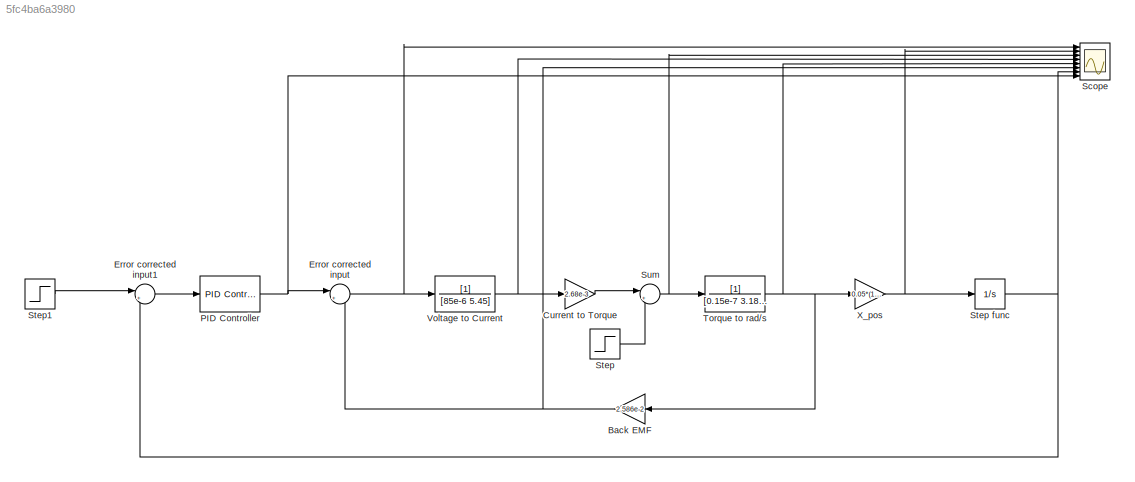
MODEL slx_5fc4ba6a3980
KIND model
CONFIG AbsTol = auto
CONFIG EnableMultiTasking = off
CONFIG FixedStep = auto
CONFIG MaxStep = auto
CONFIG MinStep = auto
CONFIG RelTol = 1e-3
CONFIG SampleTimeConstraint = Unconstrained
CONFIG SolverName = VariableStepAuto
CONFIG StartTime = 0.0
CONFIG StopTime = 2
BLOCK [Gain] Back EMF
  Gain = 2.586e-2
  NameLocation = top
BLOCK [Gain] Current to Torque
  Gain = 2.68e-3
BLOCK [Sum] Error corrected input
  Inputs = |+-
  Ports = [2, 1]
BLOCK [Sum] Error corrected input1
  Inputs = |+-
  Ports = [2, 1]
BLOCK [Reference] PID Controller  REF=pid_lib/PID Controller
  Ports = [1, 1]
  SourceBlock = pid_lib/PID Controller
  SourceProductBaseCode = SL
  SourceType = PID 1dof
BLOCK [Scope] Scope
  Floating = off
  NumInputPorts = 8
  Ports = [8]
  ScopeSpecificationString = Simulink.scopes.TimeScopeBlockCfg('CurrentConfiguration', extmgr.ConfigurationSet(extmgr.Configuration('Core','General UI',true),extmgr.Configuration('Core','Source UI',true),extmgr.Configuration('Sources','WiredSimulink',true),extmgr.Configuration('Visuals','Time Domain',true,'SerializedDisplays',{struct('MinYLimReal','-30.1226','MaxYLimReal','34.03102','YLabelReal','','MinYLimMag','0.00000','Max...<+6688ch>
BLOCK [Step] Step
  After = 1.97e-3
  SampleTime = 0
  Time = 0.8
BLOCK [Integrator] Step func
  Ports = [1, 1]
BLOCK [Step] Step1
  After = 0.1
  Before = 0.01
  SampleTime = 0
  Time = 0.5
BLOCK [Sum] Sum
  Inputs = |+-
  Ports = [2, 1]
BLOCK [TransferFcn] Torque to rad//s
  Denominator = [0.15e-7 3.18e-7]
BLOCK [TransferFcn] Voltage to Current
  ContinuousStateAttributes = 'Current'
  Denominator = [85e-6 5.45]
BLOCK [Gain] X_pos
  Gain = 0.05*(1/3)*(30/16)
NET Back EMF:1 -> Error corrected input:2, Scope:6
LINE Current to Torque:1 -> Sum:1
LINE Error corrected input1:1 -> PID Controller:1
NET Error corrected input:1 -> Scope:1, Voltage to Current:1
NET PID Controller:1 -> Error corrected input:1, Scope:8
NET Step func:1 -> Error corrected input1:2, Scope:7
LINE Step1:1 -> Error corrected input1:1
LINE Step:1 -> Sum:2
NET Sum:1 -> Scope:3, Torque to rad//s:1
NET Torque to rad//s:1 -> Back EMF:1, Scope:5, X_pos:1
NET Voltage to Current:1 -> Current to Torque:1, Scope:4
NET X_pos:1 -> Scope:2, Step func:1
note: NET lines group one-source signal fan-out (src -> all destinations, sorted); 1:1 wires keep LINE
